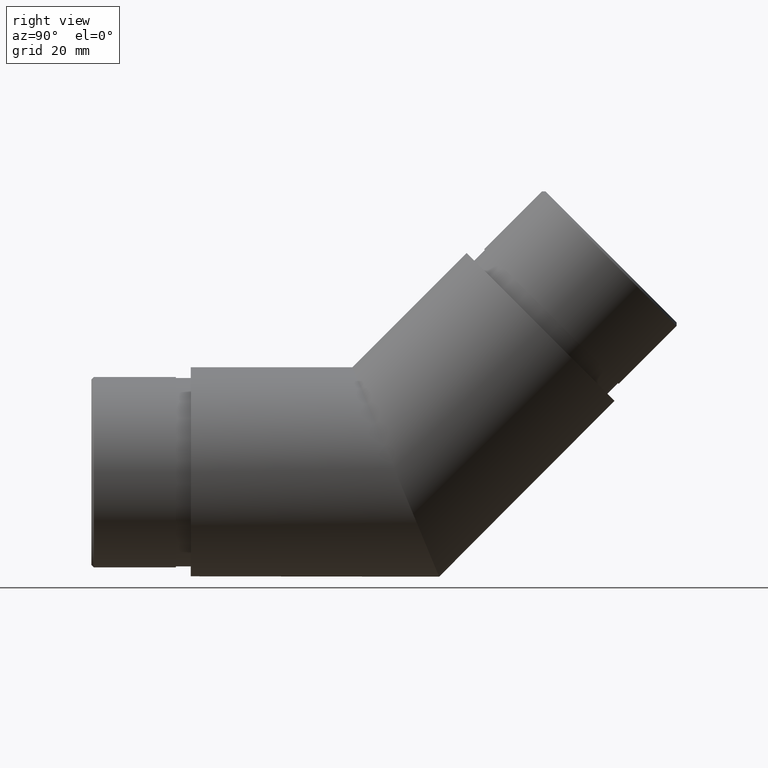
[diagram: clean part render]
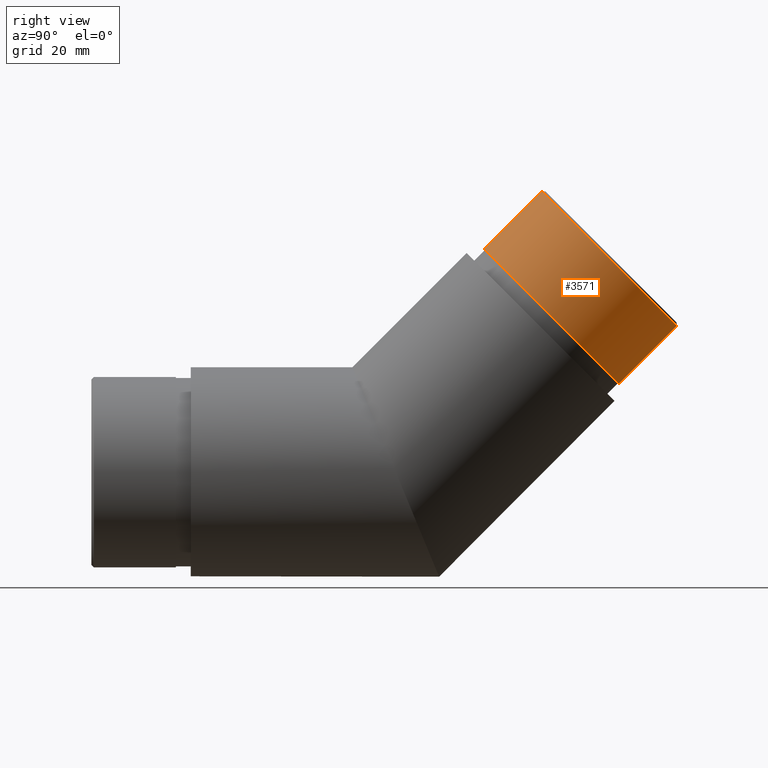
[diagram: same view with one face highlighted and labeled with its STEP entity id]
A machine part, right view. The second image highlights one B-rep face of the part: STEP entity #3571.
In plain terms, the highlighted cylindrical surface (bore or boss wall) has radius 19.15 mm, axis along (-0, -0.7071, -0.7071).
Its self-contained STEP definition (entity closure, byte-faithful):
#647 = FACE_OUTER_BOUND ( 'NONE', #4883, .T. ) ;
#1131 = CARTESIAN_POINT ( 'NONE',  ( 0.0000000000000000000, 72.55670631985081800, 31.29661248592325500 ) ) ;
#1208 = ORIENTED_EDGE ( 'NONE', *, *, #12072, .T. ) ;
#1319 = CYLINDRICAL_SURFACE ( 'NONE', #2945, 19.15000000000000900 ) ;
#1887 = AXIS2_PLACEMENT_3D ( 'NONE', #1131, #10328, #6379 ) ;
#2447 = FACE_OUTER_BOUND ( 'NONE', #3614, .T. ) ;
#2945 = AXIS2_PLACEMENT_3D ( 'NONE', #12606, #5544, #6613 ) ;
#3571 = ADVANCED_FACE ( 'NONE', ( #2447, #647 ), #1319, .T. ) ;
#3614 = EDGE_LOOP ( 'NONE', ( #1208 ) ) ;
#4123 = CARTESIAN_POINT ( 'NONE',  ( 0.0000000000000000000, 86.09780117957323900, 17.75551762620090200 ) ) ;
#4883 = EDGE_LOOP ( 'NONE', ( #7530 ) ) ;
#5198 = VERTEX_POINT ( 'NONE', #4123 ) ;
#5544 = DIRECTION ( 'NONE',  ( -0.0000000000000000000, -0.7071067811865459100, -0.7071067811865492400 ) ) ;
#5933 = DIRECTION ( 'NONE',  ( -0.0000000000000000000, -0.7071067811865475700, -0.7071067811865475700 ) ) ;
#6379 = DIRECTION ( 'NONE',  ( 0.0000000000000000000, 0.7071067811865493500, -0.7071067811865458000 ) ) ;
#6613 = DIRECTION ( 'NONE',  ( 0.0000000000000000000, 0.7071067811865491300, -0.7071067811865459100 ) ) ;
#7530 = ORIENTED_EDGE ( 'NONE', *, *, #10609, .F. ) ;
#7934 = DIRECTION ( 'NONE',  ( 0.0000000000000000000, -0.7071067811865476800, 0.7071067811865472400 ) ) ;
#8210 = VERTEX_POINT ( 'NONE', #12207 ) ;
#8738 = CIRCLE ( 'NONE', #1887, 19.15000000000000200 ) ;
#10328 = DIRECTION ( 'NONE',  ( -0.0000000000000000000, -0.7071067811865459100, -0.7071067811865492400 ) ) ;
#10424 = AXIS2_PLACEMENT_3D ( 'NONE', #12033, #5933, #7934 ) ;
#10609 = EDGE_CURVE ( 'NONE', #5198, #5198, #8738, .T. ) ;
#11768 = CIRCLE ( 'NONE', #10424, 19.15000000000000900 ) ;
#12033 = CARTESIAN_POINT ( 'NONE',  ( 0.0000000000000000000, 84.22396820942881800, 42.96387437550132700 ) ) ;
#12072 = EDGE_CURVE ( 'NONE', #8210, #8210, #11768, .T. ) ;
#12207 = CARTESIAN_POINT ( 'NONE',  ( 0.0000000000000000000, 70.68287334970642600, 56.50496923522371200 ) ) ;
#12606 = CARTESIAN_POINT ( 'NONE',  ( 0.0000000000000000000, 84.57752160002209500, 43.31742776609459600 ) ) ;